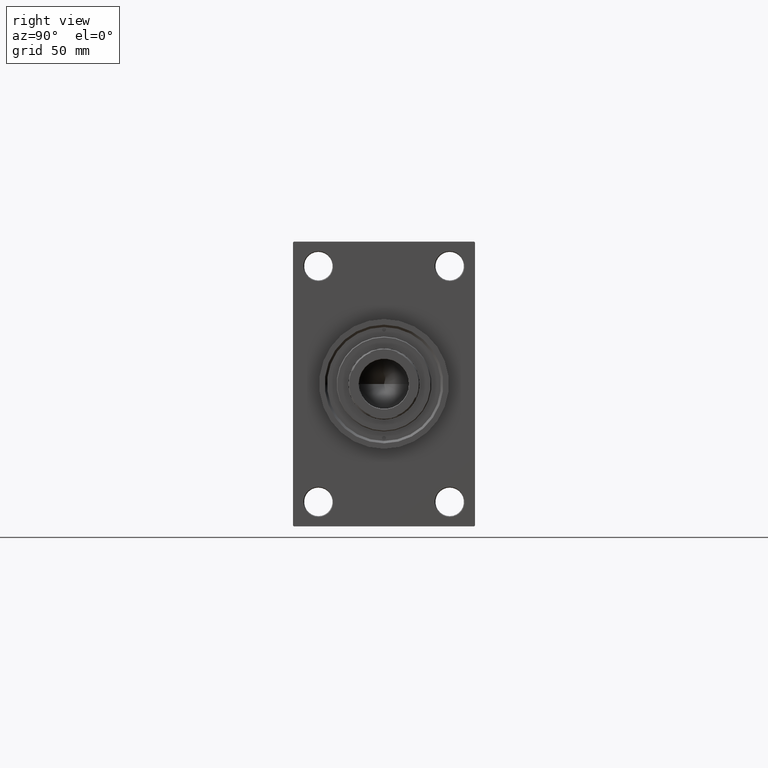
[diagram: clean part render]
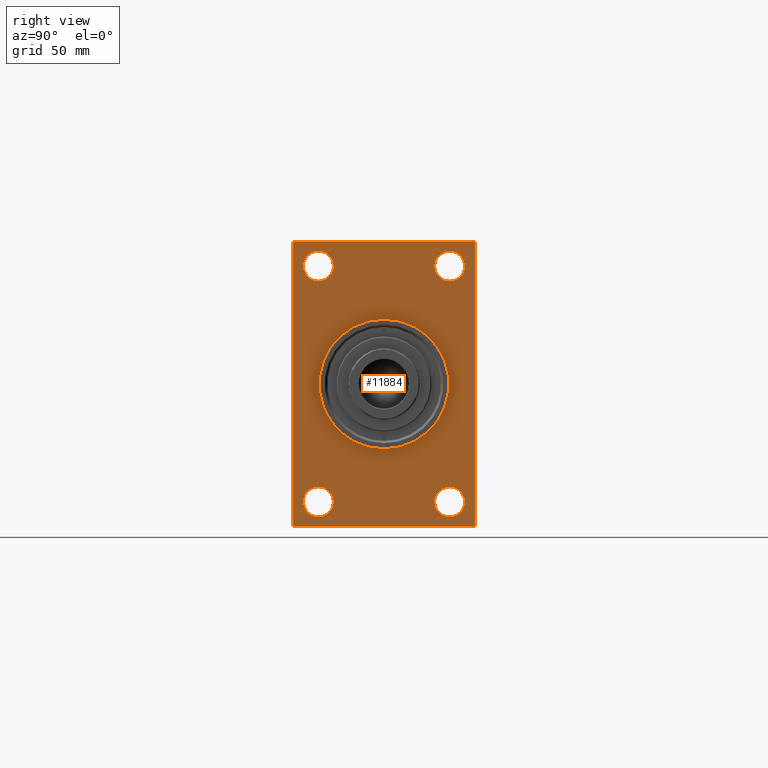
[diagram: same view with one face highlighted and labeled with its STEP entity id]
A machine part, right view. The second image highlights one B-rep face of the part: STEP entity #11884.
In plain terms, the highlighted planar face has unit normal (-1, 0, 0).
Its self-contained STEP definition (entity closure, byte-faithful):
#354 = ORIENTED_EDGE ( 'NONE', *, *, #9230, .T. ) ;
#421 = VERTEX_POINT ( 'NONE', #43756 ) ;
#548 = DIRECTION ( 'NONE',  ( -0.000000000000000000, -0.7071067811865131558, -0.7071067811865818786 ) ) ;
#571 = VECTOR ( 'NONE', #18122, 1000.000000000000000 ) ;
#633 = DIRECTION ( 'NONE',  ( 0.000000000000000000, 0.000000000000000000, 1.000000000000000000 ) ) ;
#841 = VERTEX_POINT ( 'NONE', #30375 ) ;
#995 = CARTESIAN_POINT ( 'NONE',  ( 338.9999999999999432, -41.49999999999999289, 84.00000000000007105 ) ) ;
#1705 = CARTESIAN_POINT ( 'NONE',  ( 338.9999999999999432, 41.50000000000000711, 64.99999999999994316 ) ) ;
#1742 = CARTESIAN_POINT ( 'NONE',  ( 338.9999999999999432, 41.50000000000000711, -74.50000000000000000 ) ) ;
#1832 = DIRECTION ( 'NONE',  ( 0.000000000000000000, 0.000000000000000000, -1.000000000000000000 ) ) ;
#2086 = CIRCLE ( 'NONE', #20665, 9.500000000000063949 ) ;
#2141 = ORIENTED_EDGE ( 'NONE', *, *, #7151, .T. ) ;
#3432 = EDGE_LOOP ( 'NONE', ( #4303, #27428 ) ) ;
#3497 = CARTESIAN_POINT ( 'NONE',  ( 338.9999999999999432, 57.49999999999997158, 89.99999999999998579 ) ) ;
#3534 = DIRECTION ( 'NONE',  ( -0.000000000000000000, 0.7071067811865181518, 0.7071067811865769936 ) ) ;
#3909 = CIRCLE ( 'NONE', #41037, 9.500000000000063949 ) ;
#4124 = VERTEX_POINT ( 'NONE', #25643 ) ;
#4303 = ORIENTED_EDGE ( 'NONE', *, *, #20610, .T. ) ;
#4304 = CARTESIAN_POINT ( 'NONE',  ( 338.9999999999999432, 41.50000000000000711, -74.50000000000000000 ) ) ;
#4534 = CARTESIAN_POINT ( 'NONE',  ( 338.9999999999999432, 5.021051876504148963E-15, -41.00000000000000000 ) ) ;
#5407 = CARTESIAN_POINT ( 'NONE',  ( 338.9999999999999432, 57.49999999999997868, -90.00000000000000000 ) ) ;
#5443 = CIRCLE ( 'NONE', #41003, 9.499999999999896971 ) ;
#5533 = PLANE ( 'NONE',  #6773 ) ;
#6339 = CARTESIAN_POINT ( 'NONE',  ( 338.9999999999999432, -41.49999999999999289, 64.99999999999994316 ) ) ;
#6562 = CARTESIAN_POINT ( 'NONE',  ( 338.9999999999999432, 0.000000000000000000, 0.000000000000000000 ) ) ;
#6773 = AXIS2_PLACEMENT_3D ( 'NONE', #16445, #27799, #38222 ) ;
#7151 = EDGE_CURVE ( 'NONE', #28934, #421, #29680, .T. ) ;
#7470 = DIRECTION ( 'NONE',  ( 0.000000000000000000, 0.000000000000000000, 1.000000000000000000 ) ) ;
#7838 = ORIENTED_EDGE ( 'NONE', *, *, #17060, .T. ) ;
#8312 = DIRECTION ( 'NONE',  ( 0.000000000000000000, 0.000000000000000000, 1.000000000000000000 ) ) ;
#8541 = EDGE_CURVE ( 'NONE', #28934, #12391, #19468, .T. ) ;
#8556 = DIRECTION ( 'NONE',  ( -1.000000000000000000, 0.000000000000000000, -0.000000000000000000 ) ) ;
#8665 = CARTESIAN_POINT ( 'NONE',  ( 338.9999999999999432, 0.000000000000000000, 41.00000000000000000 ) ) ;
#8698 = FACE_BOUND ( 'NONE', #46676, .T. ) ;
#8773 = DIRECTION ( 'NONE',  ( 0.000000000000000000, 0.000000000000000000, 1.000000000000000000 ) ) ;
#9126 = ORIENTED_EDGE ( 'NONE', *, *, #45320, .T. ) ;
#9230 = EDGE_CURVE ( 'NONE', #4124, #11997, #27790, .T. ) ;
#9304 = CARTESIAN_POINT ( 'NONE',  ( 338.9999999999999432, 41.50000000000000711, -84.00000000000005684 ) ) ;
#9408 = FACE_BOUND ( 'NONE', #44058, .T. ) ;
#9538 = EDGE_CURVE ( 'NONE', #20179, #39900, #43733, .T. ) ;
#10073 = DIRECTION ( 'NONE',  ( 0.000000000000000000, 0.000000000000000000, -1.000000000000000000 ) ) ;
#10887 = CARTESIAN_POINT ( 'NONE',  ( 338.9999999999999432, 56.99999999999992184, 89.99999999999998579 ) ) ;
#10956 = CARTESIAN_POINT ( 'NONE',  ( 338.9999999999999432, 41.50000000000000711, 74.50000000000001421 ) ) ;
#11276 = ORIENTED_EDGE ( 'NONE', *, *, #43204, .F. ) ;
#11601 = AXIS2_PLACEMENT_3D ( 'NONE', #15171, #26309, #633 ) ;
#11884 = ADVANCED_FACE ( 'NONE', ( #8698, #45951, #12332, #9408, #34829, #46184 ), #5533, .F. ) ;
#11916 = LINE ( 'NONE', #19901, #16671 ) ;
#11997 = VERTEX_POINT ( 'NONE', #47019 ) ;
#12130 = ORIENTED_EDGE ( 'NONE', *, *, #8541, .F. ) ;
#12332 = FACE_BOUND ( 'NONE', #44320, .T. ) ;
#12391 = VERTEX_POINT ( 'NONE', #44829 ) ;
#12917 = ORIENTED_EDGE ( 'NONE', *, *, #23003, .T. ) ;
#13655 = VERTEX_POINT ( 'NONE', #18224 ) ;
#14353 = CARTESIAN_POINT ( 'NONE',  ( 338.9999999999999432, 41.50000000000000711, 74.50000000000001421 ) ) ;
#14443 = AXIS2_PLACEMENT_3D ( 'NONE', #28466, #40316, #10073 ) ;
#14824 = DIRECTION ( 'NONE',  ( 0.000000000000000000, 0.000000000000000000, 1.000000000000000000 ) ) ;
#15171 = CARTESIAN_POINT ( 'NONE',  ( 338.9999999999999432, -41.49999999999999289, -74.49999999999998579 ) ) ;
#15228 = LINE ( 'NONE', #10887, #26281 ) ;
#15446 = DIRECTION ( 'NONE',  ( -1.000000000000000000, 0.000000000000000000, -0.000000000000000000 ) ) ;
#16445 = CARTESIAN_POINT ( 'NONE',  ( 338.9999999999999432, 0.000000000000000000, 0.000000000000000000 ) ) ;
#16503 = ORIENTED_EDGE ( 'NONE', *, *, #46186, .T. ) ;
#16671 = VECTOR ( 'NONE', #41438, 1000.000000000000114 ) ;
#16898 = VERTEX_POINT ( 'NONE', #4534 ) ;
#16957 = VECTOR ( 'NONE', #1832, 1000.000000000000000 ) ;
#17060 = EDGE_CURVE ( 'NONE', #13655, #841, #20254, .T. ) ;
#17577 = CIRCLE ( 'NONE', #28391, 9.500000000000063949 ) ;
#17705 = ORIENTED_EDGE ( 'NONE', *, *, #42280, .T. ) ;
#18122 = DIRECTION ( 'NONE',  ( 0.000000000000000000, 3.854941057726238467E-17, -1.000000000000000000 ) ) ;
#18224 = CARTESIAN_POINT ( 'NONE',  ( 338.9999999999999432, -57.50000000000002132, 89.49999999999997158 ) ) ;
#18344 = CIRCLE ( 'NONE', #26046, 9.500000000000063949 ) ;
#18828 = CARTESIAN_POINT ( 'NONE',  ( 338.9999999999999432, -41.49999999999999289, -65.00000000000008527 ) ) ;
#19451 = EDGE_CURVE ( 'NONE', #39888, #47368, #35538, .T. ) ;
#19468 = LINE ( 'NONE', #5407, #20535 ) ;
#19486 = CARTESIAN_POINT ( 'NONE',  ( 338.9999999999999432, -41.49999999999999289, -74.49999999999998579 ) ) ;
#19813 = AXIS2_PLACEMENT_3D ( 'NONE', #14353, #29108, #25474 ) ;
#19901 = CARTESIAN_POINT ( 'NONE',  ( 338.9999999999999432, -57.00000000000002132, -90.00000000000001421 ) ) ;
#20179 = VERTEX_POINT ( 'NONE', #1705 ) ;
#20254 = LINE ( 'NONE', #35006, #16957 ) ;
#20535 = VECTOR ( 'NONE', #34463, 1000.000000000000000 ) ;
#20610 = EDGE_CURVE ( 'NONE', #47368, #39888, #5443, .T. ) ;
#20665 = AXIS2_PLACEMENT_3D ( 'NONE', #1742, #33968, #30340 ) ;
#21278 = CARTESIAN_POINT ( 'NONE',  ( 338.9999999999999432, 57.49999999999997158, 89.99999999999998579 ) ) ;
#22164 = VERTEX_POINT ( 'NONE', #29749 ) ;
#22263 = DIRECTION ( 'NONE',  ( 0.000000000000000000, -0.7071067811865867636, 0.7071067811865081598 ) ) ;
#22598 = CARTESIAN_POINT ( 'NONE',  ( 338.9999999999999432, -57.50000000000002132, 89.49999999999997158 ) ) ;
#22651 = ORIENTED_EDGE ( 'NONE', *, *, #29075, .T. ) ;
#23003 = EDGE_CURVE ( 'NONE', #42708, #4124, #15228, .T. ) ;
#24303 = ORIENTED_EDGE ( 'NONE', *, *, #43456, .F. ) ;
#24565 = EDGE_CURVE ( 'NONE', #26823, #30242, #3909, .T. ) ;
#25474 = DIRECTION ( 'NONE',  ( 0.000000000000000000, 0.000000000000000000, 1.000000000000000000 ) ) ;
#25643 = CARTESIAN_POINT ( 'NONE',  ( 338.9999999999999432, 56.99999999999992184, 89.99999999999998579 ) ) ;
#25705 = DIRECTION ( 'NONE',  ( -1.000000000000000000, 0.000000000000000000, -0.000000000000000000 ) ) ;
#25907 = CARTESIAN_POINT ( 'NONE',  ( 338.9999999999999432, -41.49999999999999289, -83.99999999999988631 ) ) ;
#26019 = DIRECTION ( 'NONE',  ( -1.000000000000000000, 0.000000000000000000, -0.000000000000000000 ) ) ;
#26046 = AXIS2_PLACEMENT_3D ( 'NONE', #45328, #8556, #8312 ) ;
#26123 = AXIS2_PLACEMENT_3D ( 'NONE', #6562, #43584, #40202 ) ;
#26281 = VECTOR ( 'NONE', #22263, 1000.000000000000000 ) ;
#26309 = DIRECTION ( 'NONE',  ( -1.000000000000000000, 0.000000000000000000, -0.000000000000000000 ) ) ;
#26823 = VERTEX_POINT ( 'NONE', #995 ) ;
#27285 = EDGE_LOOP ( 'NONE', ( #7838, #35244, #12130, #2141, #24303, #12917, #354, #17705 ) ) ;
#27428 = ORIENTED_EDGE ( 'NONE', *, *, #19451, .T. ) ;
#27790 = LINE ( 'NONE', #3497, #31372 ) ;
#27799 = DIRECTION ( 'NONE',  ( -1.000000000000000000, 0.000000000000000000, -0.000000000000000000 ) ) ;
#28391 = AXIS2_PLACEMENT_3D ( 'NONE', #10956, #25705, #14824 ) ;
#28466 = CARTESIAN_POINT ( 'NONE',  ( 338.9999999999999432, 0.000000000000000000, 0.000000000000000000 ) ) ;
#28934 = VERTEX_POINT ( 'NONE', #47391 ) ;
#29075 = EDGE_CURVE ( 'NONE', #46827, #22164, #46560, .T. ) ;
#29108 = DIRECTION ( 'NONE',  ( -1.000000000000000000, 0.000000000000000000, -0.000000000000000000 ) ) ;
#29151 = ORIENTED_EDGE ( 'NONE', *, *, #41116, .F. ) ;
#29680 = LINE ( 'NONE', #44682, #33655 ) ;
#29749 = CARTESIAN_POINT ( 'NONE',  ( 338.9999999999999432, 41.50000000000000711, -64.99999999999992895 ) ) ;
#30242 = VERTEX_POINT ( 'NONE', #6339 ) ;
#30340 = DIRECTION ( 'NONE',  ( 0.000000000000000000, 0.000000000000000000, 1.000000000000000000 ) ) ;
#30375 = CARTESIAN_POINT ( 'NONE',  ( 338.9999999999999432, -57.50000000000002132, -89.50000000000002842 ) ) ;
#30807 = CARTESIAN_POINT ( 'NONE',  ( 338.9999999999999432, -41.49999999999999289, 74.50000000000001421 ) ) ;
#31194 = EDGE_LOOP ( 'NONE', ( #29151, #11276 ) ) ;
#31372 = VECTOR ( 'NONE', #35057, 1000.000000000000000 ) ;
#33419 = AXIS2_PLACEMENT_3D ( 'NONE', #4304, #15446, #7470 ) ;
#33588 = CARTESIAN_POINT ( 'NONE',  ( 338.9999999999999432, 41.50000000000000711, 84.00000000000007105 ) ) ;
#33655 = VECTOR ( 'NONE', #3534, 1000.000000000000000 ) ;
#33968 = DIRECTION ( 'NONE',  ( -1.000000000000000000, 0.000000000000000000, -0.000000000000000000 ) ) ;
#34463 = DIRECTION ( 'NONE',  ( 0.000000000000000000, -1.000000000000000000, -1.206764157201257045E-16 ) ) ;
#34829 = FACE_BOUND ( 'NONE', #31194, .T. ) ;
#35006 = CARTESIAN_POINT ( 'NONE',  ( 338.9999999999999432, -57.50000000000002132, 89.99999999999997158 ) ) ;
#35057 = DIRECTION ( 'NONE',  ( 0.000000000000000000, -1.000000000000000000, -1.206764157201257291E-16 ) ) ;
#35244 = ORIENTED_EDGE ( 'NONE', *, *, #39034, .T. ) ;
#35538 = CIRCLE ( 'NONE', #11601, 9.499999999999896971 ) ;
#37354 = LINE ( 'NONE', #22598, #44601 ) ;
#37632 = CIRCLE ( 'NONE', #14443, 41.00000000000000000 ) ;
#38222 = DIRECTION ( 'NONE',  ( -0.000000000000000000, 0.000000000000000000, 1.000000000000000000 ) ) ;
#39034 = EDGE_CURVE ( 'NONE', #841, #12391, #11916, .T. ) ;
#39432 = LINE ( 'NONE', #21278, #571 ) ;
#39888 = VERTEX_POINT ( 'NONE', #18828 ) ;
#39900 = VERTEX_POINT ( 'NONE', #33588 ) ;
#40202 = DIRECTION ( 'NONE',  ( 0.000000000000000000, 0.000000000000000000, -1.000000000000000000 ) ) ;
#40316 = DIRECTION ( 'NONE',  ( 1.000000000000000000, 0.000000000000000000, 0.000000000000000000 ) ) ;
#40805 = CIRCLE ( 'NONE', #26123, 41.00000000000000000 ) ;
#41003 = AXIS2_PLACEMENT_3D ( 'NONE', #19486, #26019, #44649 ) ;
#41037 = AXIS2_PLACEMENT_3D ( 'NONE', #30807, #45558, #8773 ) ;
#41061 = ORIENTED_EDGE ( 'NONE', *, *, #24565, .T. ) ;
#41116 = EDGE_CURVE ( 'NONE', #44756, #16898, #37632, .T. ) ;
#41438 = DIRECTION ( 'NONE',  ( 0.000000000000000000, 0.7071067811865965336, -0.7071067811864985009 ) ) ;
#42280 = EDGE_CURVE ( 'NONE', #11997, #13655, #37354, .T. ) ;
#42708 = VERTEX_POINT ( 'NONE', #45740 ) ;
#43204 = EDGE_CURVE ( 'NONE', #16898, #44756, #40805, .T. ) ;
#43456 = EDGE_CURVE ( 'NONE', #42708, #421, #39432, .T. ) ;
#43584 = DIRECTION ( 'NONE',  ( 1.000000000000000000, 0.000000000000000000, 0.000000000000000000 ) ) ;
#43733 = CIRCLE ( 'NONE', #19813, 9.500000000000063949 ) ;
#43756 = CARTESIAN_POINT ( 'NONE',  ( 338.9999999999999432, 57.49999999999997868, -89.49999999999995737 ) ) ;
#44058 = EDGE_LOOP ( 'NONE', ( #46950, #16503 ) ) ;
#44320 = EDGE_LOOP ( 'NONE', ( #22651, #9126 ) ) ;
#44601 = VECTOR ( 'NONE', #548, 1000.000000000000000 ) ;
#44649 = DIRECTION ( 'NONE',  ( 0.000000000000000000, 0.000000000000000000, 1.000000000000000000 ) ) ;
#44682 = CARTESIAN_POINT ( 'NONE',  ( 338.9999999999999432, 57.49999999999997868, -89.50000000000001421 ) ) ;
#44756 = VERTEX_POINT ( 'NONE', #8665 ) ;
#44829 = CARTESIAN_POINT ( 'NONE',  ( 338.9999999999999432, -57.00000000000002132, -90.00000000000001421 ) ) ;
#45122 = ORIENTED_EDGE ( 'NONE', *, *, #45400, .T. ) ;
#45320 = EDGE_CURVE ( 'NONE', #22164, #46827, #2086, .T. ) ;
#45328 = CARTESIAN_POINT ( 'NONE',  ( 338.9999999999999432, -41.49999999999999289, 74.50000000000001421 ) ) ;
#45400 = EDGE_CURVE ( 'NONE', #30242, #26823, #18344, .T. ) ;
#45558 = DIRECTION ( 'NONE',  ( -1.000000000000000000, 0.000000000000000000, -0.000000000000000000 ) ) ;
#45740 = CARTESIAN_POINT ( 'NONE',  ( 338.9999999999999432, 57.49999999999997158, 89.49999999999998579 ) ) ;
#45951 = FACE_BOUND ( 'NONE', #3432, .T. ) ;
#46184 = FACE_OUTER_BOUND ( 'NONE', #27285, .T. ) ;
#46186 = EDGE_CURVE ( 'NONE', #39900, #20179, #17577, .T. ) ;
#46560 = CIRCLE ( 'NONE', #33419, 9.500000000000063949 ) ;
#46676 = EDGE_LOOP ( 'NONE', ( #45122, #41061 ) ) ;
#46827 = VERTEX_POINT ( 'NONE', #9304 ) ;
#46950 = ORIENTED_EDGE ( 'NONE', *, *, #9538, .T. ) ;
#47019 = CARTESIAN_POINT ( 'NONE',  ( 338.9999999999999432, -57.00000000000007105, 89.99999999999997158 ) ) ;
#47368 = VERTEX_POINT ( 'NONE', #25907 ) ;
#47391 = CARTESIAN_POINT ( 'NONE',  ( 338.9999999999999432, 57.00000000000003553, -90.00000000000000000 ) ) ;